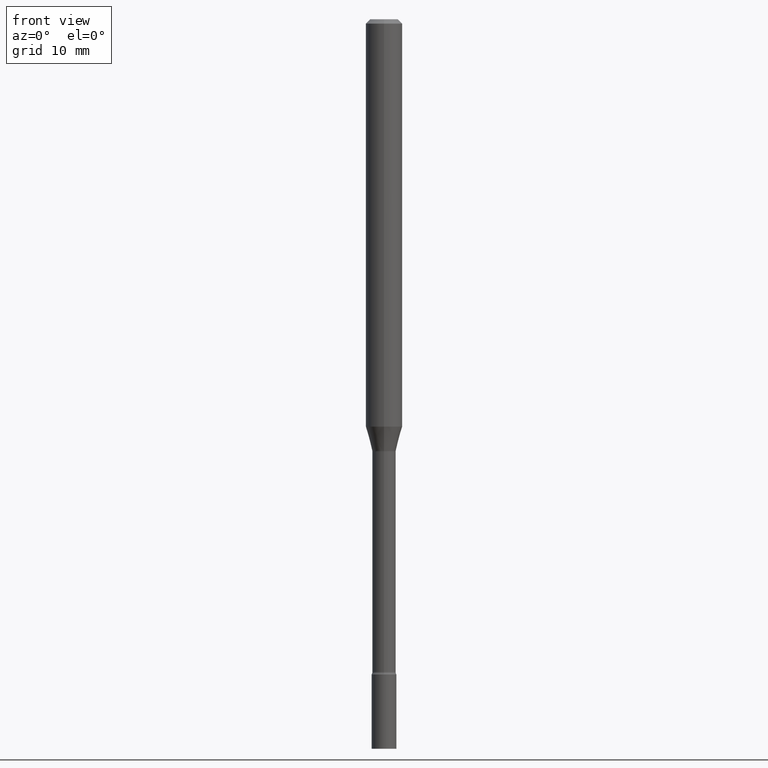
[diagram: clean part render]
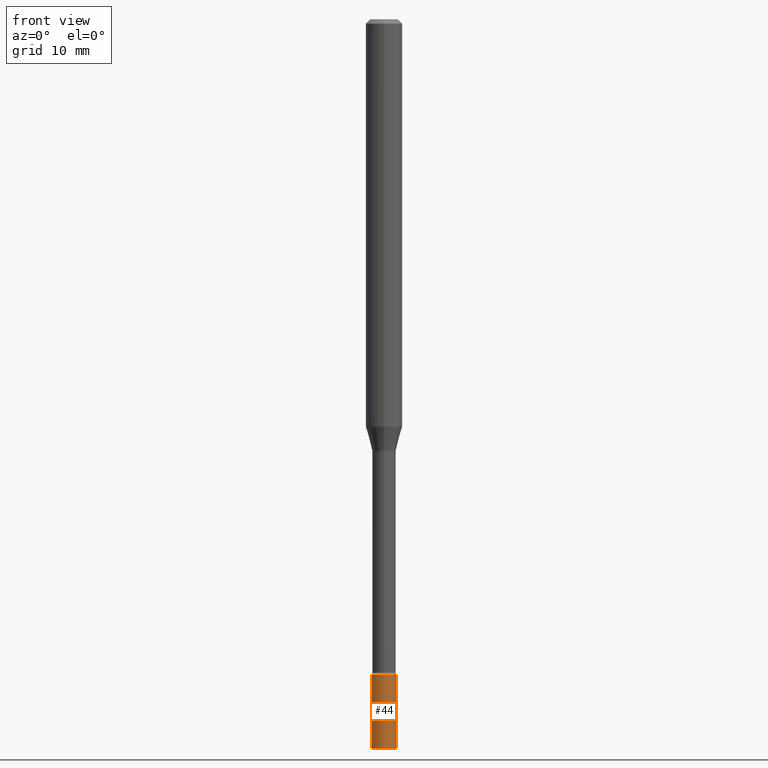
[diagram: same view with one face highlighted and labeled with its STEP entity id]
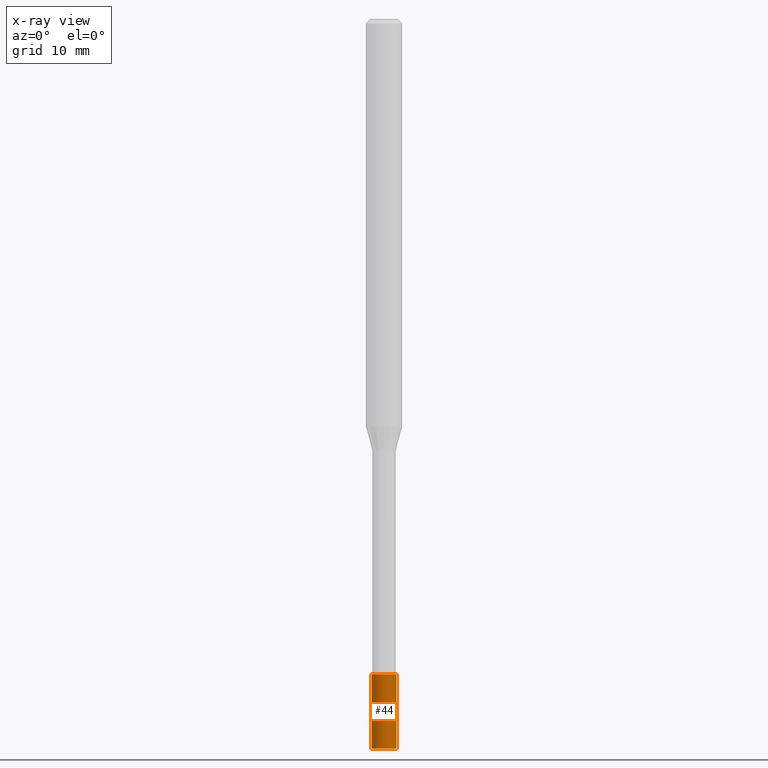
[diagram: x-ray of the same camera — body ghosted, the highlighted face saturated]
A machine part, front view. The second image highlights one B-rep face of the part: STEP entity #44.
The next image is the same camera in x-ray: the body ghosted, the highlighted face saturated — about 0% of this face is hidden behind the body in this view.
In plain terms, the highlighted cylindrical surface (edge-blend (fillet) strip) has radius 1.0795 mm, axis along (-0, 0, 1).
Its self-contained STEP definition (entity closure, byte-faithful):
#7 = LINE ( 'NONE', #226, #85 ) ;
#13 = CARTESIAN_POINT ( 'NONE',  ( -0.04249999999999999611, -7.981558813707320936E-15, -2.245000000000000107 ) ) ;
#30 = FACE_OUTER_BOUND ( 'NONE', #260, .T. ) ;
#44 = ADVANCED_FACE ( 'NONE', ( #30 ), #189, .T. ) ;
#46 = CARTESIAN_POINT ( 'NONE',  ( -0.04249999999999999611, -7.981558813707320936E-15, -2.500000000000000000 ) ) ;
#59 = ORIENTED_EDGE ( 'NONE', *, *, #431, .T. ) ;
#60 = VERTEX_POINT ( 'NONE', #46 ) ;
#78 = DIRECTION ( 'NONE',  ( -2.445468806185136597E-29, 3.491481338843145583E-15, 1.000000000000000000 ) ) ;
#85 = VECTOR ( 'NONE', #518, 39.37007874015748143 ) ;
#104 = CARTESIAN_POINT ( 'NONE',  ( 5.490077469885631570E-29, -7.838375605702861835E-15, -2.245000000000000107 ) ) ;
#106 = DIRECTION ( 'NONE',  ( 1.000000000000000000, -6.982962677686276177E-15, 0.000000000000000000 ) ) ;
#135 = ORIENTED_EDGE ( 'NONE', *, *, #184, .T. ) ;
#143 = CARTESIAN_POINT ( 'NONE',  ( 6.113672015462842613E-29, -8.728703347107864943E-15, -2.500000000000000000 ) ) ;
#146 = EDGE_CURVE ( 'NONE', #60, #401, #372, .T. ) ;
#161 = CARTESIAN_POINT ( 'NONE',  ( 0.04249999999999999611, -9.025479260909530016E-15, -2.500000000000000000 ) ) ;
#165 = CARTESIAN_POINT ( 'NONE',  ( -0.04249999999999999611, 3.019806626980425514E-16, -2.090547413358334859E-30 ) ) ;
#184 = EDGE_CURVE ( 'NONE', #289, #251, #7, .T. ) ;
#189 = CYLINDRICAL_SURFACE ( 'NONE', #324, 0.04249999999999999611 ) ;
#190 = CARTESIAN_POINT ( 'NONE',  ( 0.04249999999999999611, -8.135151519504528486E-15, -2.245000000000000107 ) ) ;
#217 = DIRECTION ( 'NONE',  ( 1.000000000000000000, -6.982962677686254089E-15, 0.000000000000000000 ) ) ;
#226 = CARTESIAN_POINT ( 'NONE',  ( 0.04249999999999999611, -2.967759138016663549E-16, 2.072375129713272502E-30 ) ) ;
#250 = DIRECTION ( 'NONE',  ( -2.445468806185136597E-29, 3.491481338843145583E-15, 1.000000000000000000 ) ) ;
#251 = VERTEX_POINT ( 'NONE', #190 ) ;
#260 = EDGE_LOOP ( 'NONE', ( #517, #59, #135, #443 ) ) ;
#283 = VECTOR ( 'NONE', #326, 39.37007874015748143 ) ;
#289 = VERTEX_POINT ( 'NONE', #161 ) ;
#308 = CARTESIAN_POINT ( 'NONE',  ( 0.000000000000000000, 0.000000000000000000, 0.000000000000000000 ) ) ;
#312 = CIRCLE ( 'NONE', #367, 0.04249999999999999611 ) ;
#324 = AXIS2_PLACEMENT_3D ( 'NONE', #308, #78, #484 ) ;
#326 = DIRECTION ( 'NONE',  ( -2.445468806185136877E-29, 3.491481338843145188E-15, 1.000000000000000000 ) ) ;
#367 = AXIS2_PLACEMENT_3D ( 'NONE', #143, #250, #217 ) ;
#372 = LINE ( 'NONE', #165, #283 ) ;
#375 = AXIS2_PLACEMENT_3D ( 'NONE', #104, #473, #106 ) ;
#396 = CIRCLE ( 'NONE', #375, 0.04249999999999999611 ) ;
#401 = VERTEX_POINT ( 'NONE', #13 ) ;
#431 = EDGE_CURVE ( 'NONE', #60, #289, #312, .T. ) ;
#443 = ORIENTED_EDGE ( 'NONE', *, *, #514, .F. ) ;
#473 = DIRECTION ( 'NONE',  ( -2.445468806185136597E-29, 3.491481338843145583E-15, 1.000000000000000000 ) ) ;
#484 = DIRECTION ( 'NONE',  ( 1.000000000000000000, -6.982962677686267499E-15, 4.876176775795935793E-29 ) ) ;
#514 = EDGE_CURVE ( 'NONE', #401, #251, #396, .T. ) ;
#517 = ORIENTED_EDGE ( 'NONE', *, *, #146, .F. ) ;
#518 = DIRECTION ( 'NONE',  ( -2.445468806185136877E-29, 3.491481338843145188E-15, 1.000000000000000000 ) ) ;